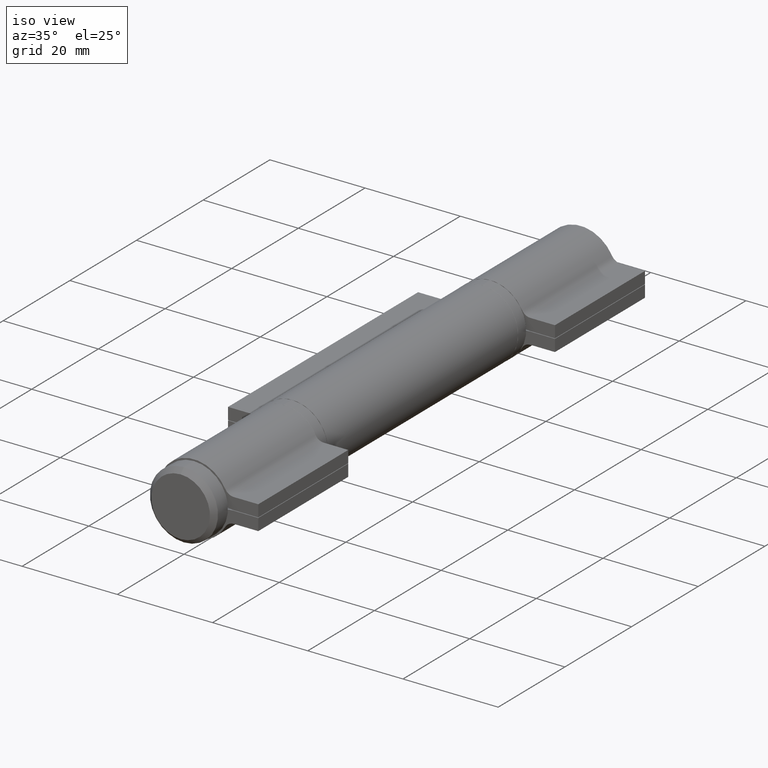
[diagram: clean part render]
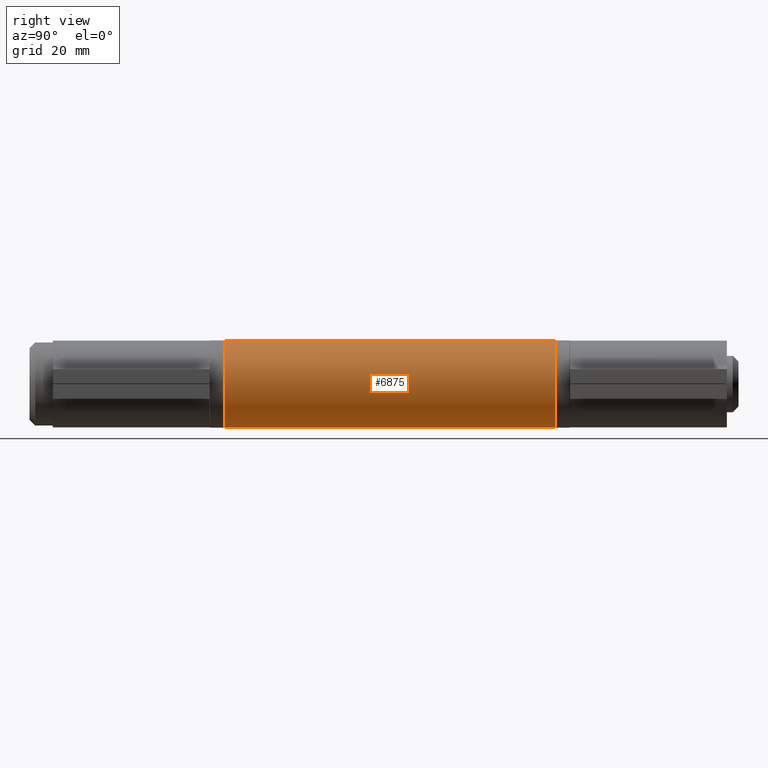
[diagram: tour spotlight — one face highlighted and labeled with its STEP entity id]
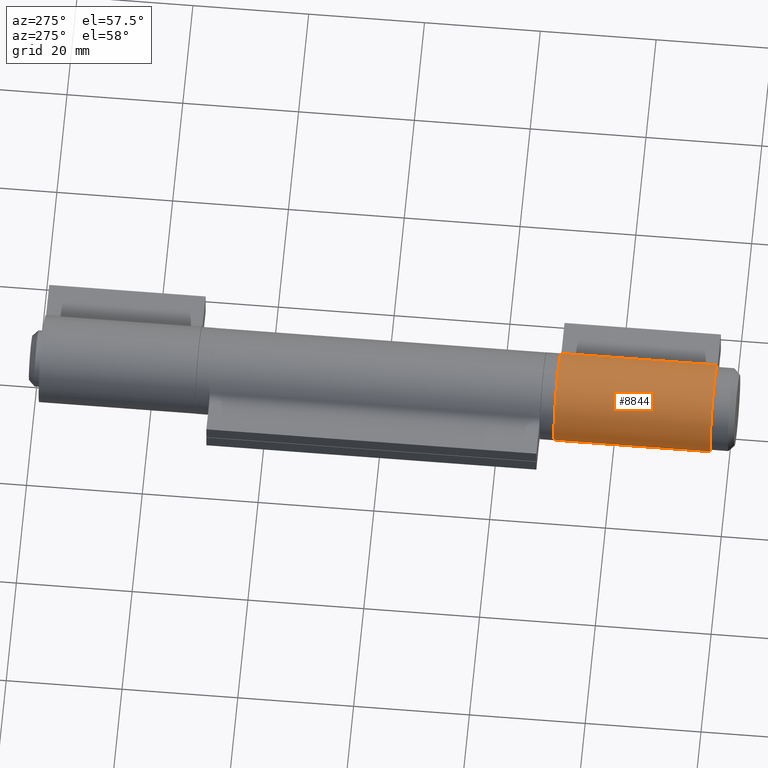
[diagram: tour spotlight — one face highlighted and labeled with its STEP entity id]
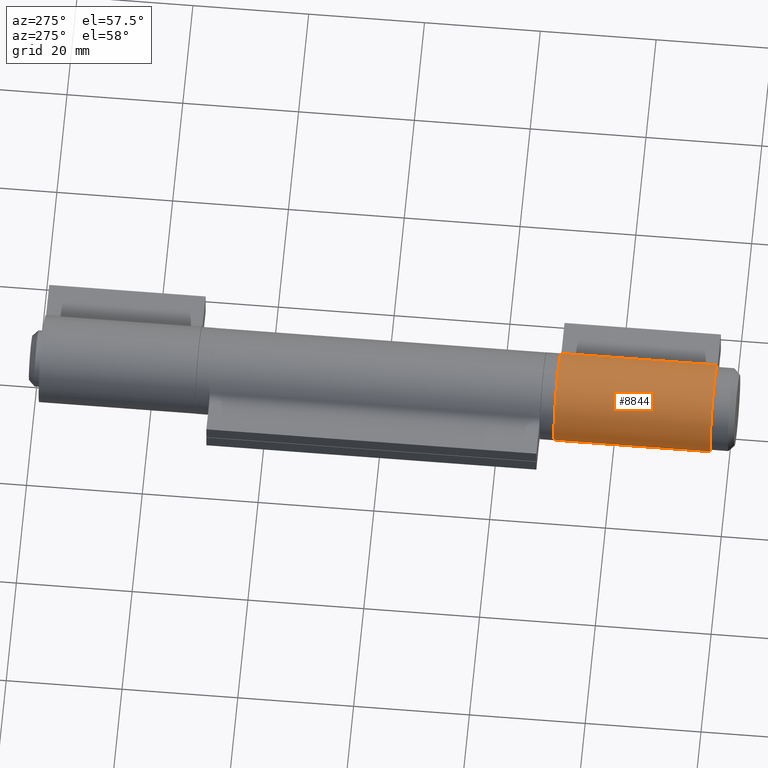
[diagram: tour spotlight — one face highlighted and labeled with its STEP entity id]
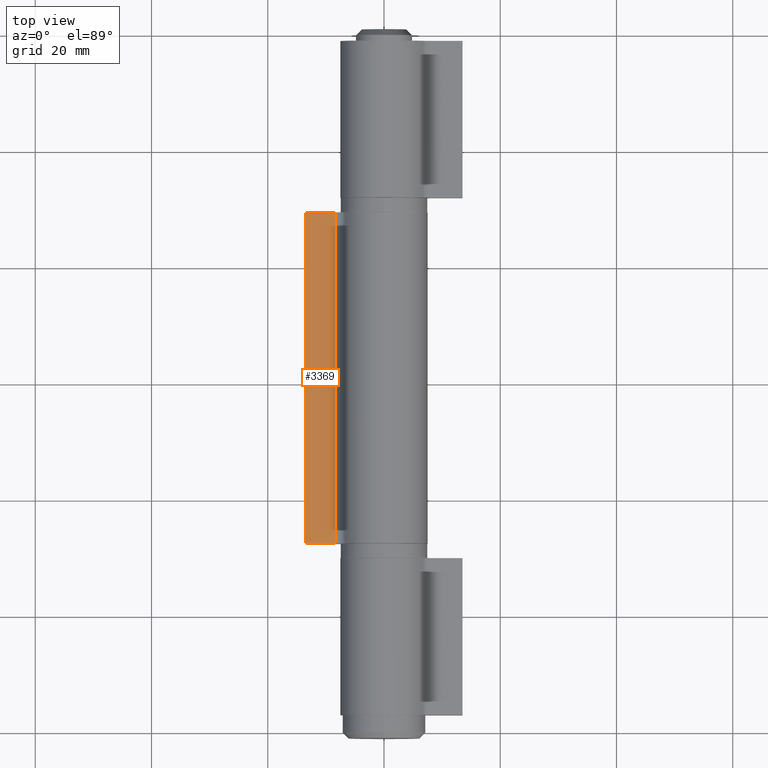
[diagram: tour spotlight — one face highlighted and labeled with its STEP entity id]
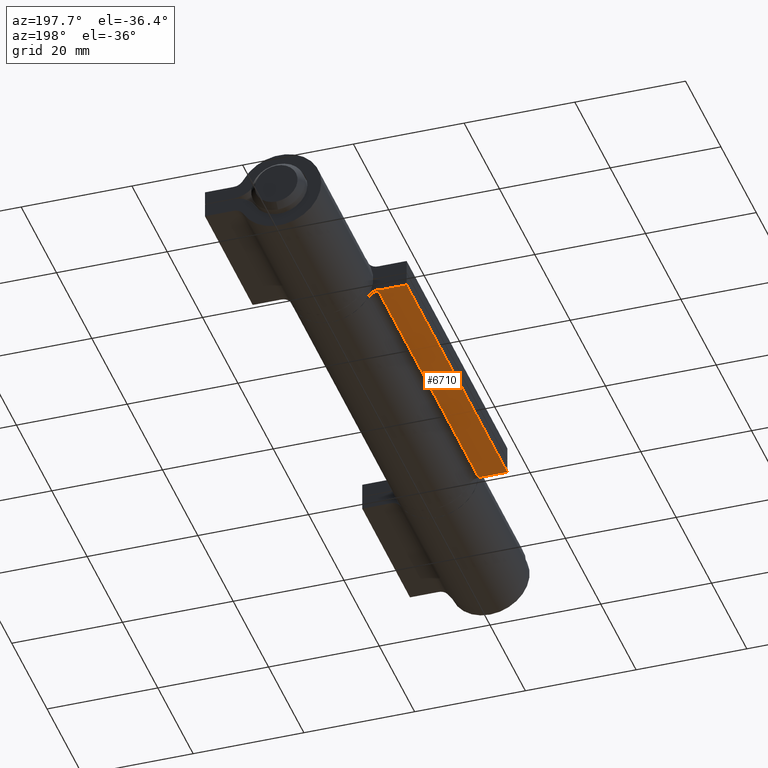
[diagram: tour spotlight — one face highlighted and labeled with its STEP entity id]
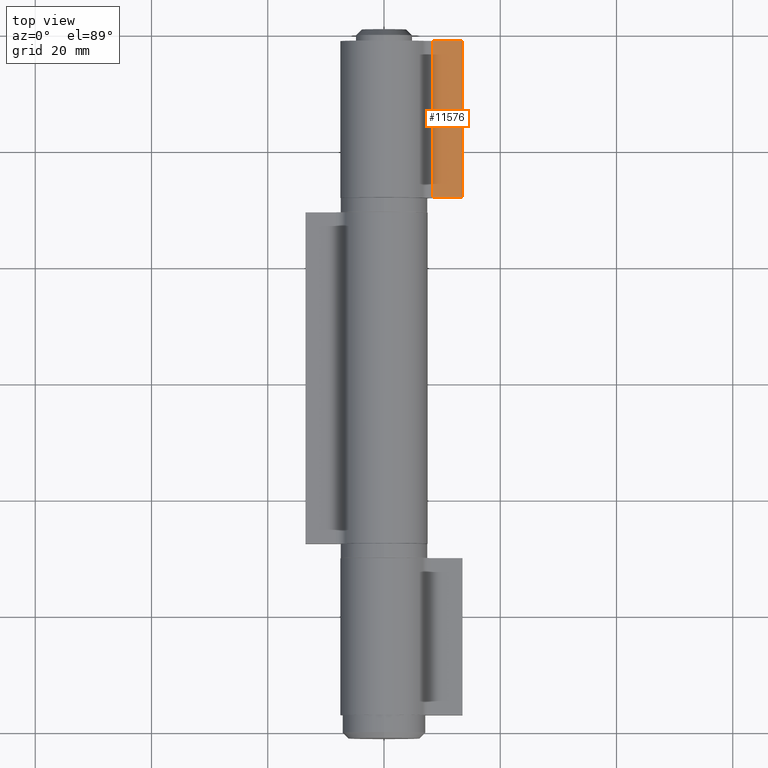
[diagram: tour spotlight — one face highlighted and labeled with its STEP entity id]
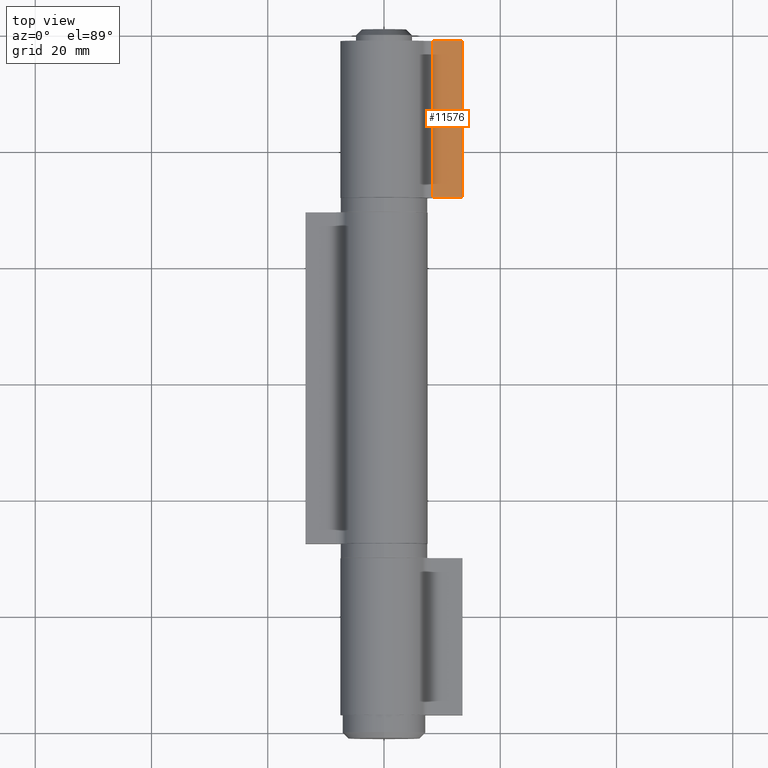
[diagram: tour spotlight — one face highlighted and labeled with its STEP entity id]
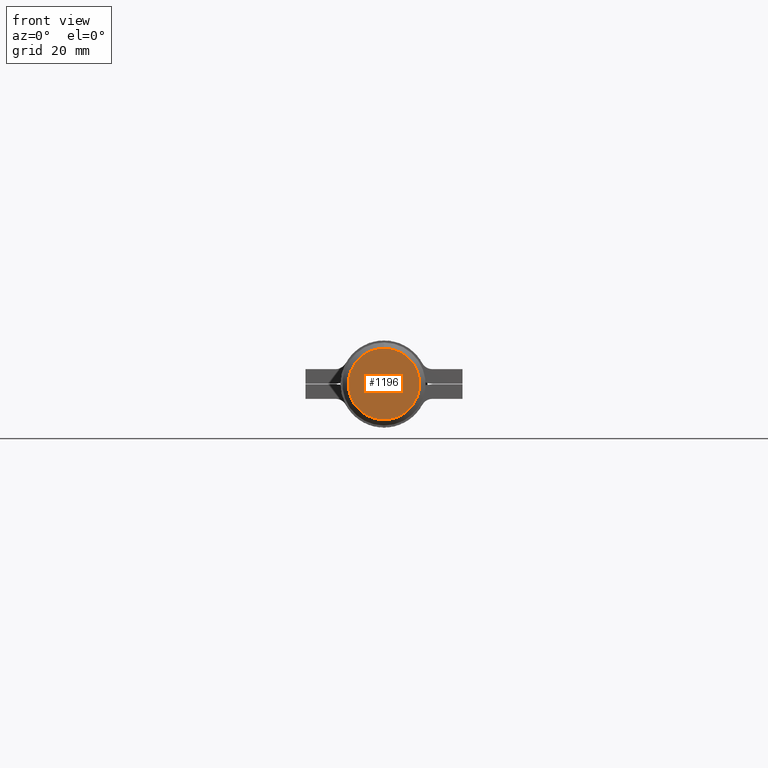
[diagram: tour spotlight — one face highlighted and labeled with its STEP entity id]
A machine part: a face-by-face anatomy tour. The part has 279 B-rep faces; the first image is the clean iso view, then the 8 largest visible faces are spotlighted one at a time (largest first), each with its STEP entity span.

Face 1 — right view, entity #6875. In plain terms, the highlighted cylindrical surface (partial cylindrical patch) has radius 7.5 mm, axis along (-0, -1, 0).
Definition (entity closure, byte-faithful):
#1681 = EDGE_CURVE ( 'NONE', #3194, #7250, #6335, .T. ) ;
#1700 = AXIS2_PLACEMENT_3D ( 'NONE', #7594, #7371, #11144 ) ;
#1954 = VECTOR ( 'NONE', #5976, 1000.000000000000000 ) ;
#2030 = CYLINDRICAL_SURFACE ( 'NONE', #5936, 7.500000000000000000 ) ;
#2193 = DIRECTION ( 'NONE',  ( 0.000000000000000000, 0.000000000000000000, 1.000000000000000000 ) ) ;
#2274 = CARTESIAN_POINT ( 'NONE',  ( -3.592105263157892470, -28.50000000000000000, -6.583827137645197780 ) ) ;
#3194 = VERTEX_POINT ( 'NONE', #6754 ) ;
#3233 = CIRCLE ( 'NONE', #11488, 7.500000000000000000 ) ;
#4387 = CARTESIAN_POINT ( 'NONE',  ( 0.000000000000000000, 28.50000000000000000, 0.000000000000000000 ) ) ;
#4519 = ORIENTED_EDGE ( 'NONE', *, *, #10116, .T. ) ;
#5155 = EDGE_LOOP ( 'NONE', ( #4519, #11934, #7478, #9316 ) ) ;
#5309 = FACE_OUTER_BOUND ( 'NONE', #5155, .T. ) ;
#5327 = CARTESIAN_POINT ( 'NONE',  ( -3.592105263157892470, 28.50000000000000000, -6.583827137645197780 ) ) ;
#5559 = CARTESIAN_POINT ( 'NONE',  ( 3.592105263157893802, -28.50000000000000000, -6.583827137645198668 ) ) ;
#5936 = AXIS2_PLACEMENT_3D ( 'NONE', #4387, #6366, #9057 ) ;
#5976 = DIRECTION ( 'NONE',  ( -0.000000000000000000, -1.000000000000000000, -0.000000000000000000 ) ) ;
#6030 = EDGE_CURVE ( 'NONE', #3194, #7127, #7664, .T. ) ;
#6335 = LINE ( 'NONE', #5327, #9096 ) ;
#6366 = DIRECTION ( 'NONE',  ( -0.000000000000000000, -1.000000000000000000, -0.000000000000000000 ) ) ;
#6754 = CARTESIAN_POINT ( 'NONE',  ( -3.592105263157892470, 28.50000000000000000, -6.583827137645197780 ) ) ;
#6875 = ADVANCED_FACE ( 'NONE', ( #5309 ), #2030, .T. ) ;
#7066 = VERTEX_POINT ( 'NONE', #5559 ) ;
#7127 = VERTEX_POINT ( 'NONE', #11267 ) ;
#7250 = VERTEX_POINT ( 'NONE', #2274 ) ;
#7371 = DIRECTION ( 'NONE',  ( 0.000000000000000000, 1.000000000000000000, 0.000000000000000000 ) ) ;
#7478 = ORIENTED_EDGE ( 'NONE', *, *, #6030, .F. ) ;
#7594 = CARTESIAN_POINT ( 'NONE',  ( 0.000000000000000000, 28.50000000000000000, 0.000000000000000000 ) ) ;
#7664 = CIRCLE ( 'NONE', #1700, 7.500000000000000000 ) ;
#7709 = CARTESIAN_POINT ( 'NONE',  ( 0.000000000000000000, -28.50000000000000000, 0.000000000000000000 ) ) ;
#8089 = DIRECTION ( 'NONE',  ( -0.000000000000000000, -1.000000000000000000, -0.000000000000000000 ) ) ;
#8166 = EDGE_CURVE ( 'NONE', #7127, #7066, #10203, .T. ) ;
#8900 = CARTESIAN_POINT ( 'NONE',  ( 3.592105263157893802, 28.50000000000000000, -6.583827137645198668 ) ) ;
#9057 = DIRECTION ( 'NONE',  ( 0.000000000000000000, 0.000000000000000000, -1.000000000000000000 ) ) ;
#9096 = VECTOR ( 'NONE', #8089, 1000.000000000000000 ) ;
#9316 = ORIENTED_EDGE ( 'NONE', *, *, #1681, .T. ) ;
#9665 = DIRECTION ( 'NONE',  ( 0.000000000000000000, 1.000000000000000000, 0.000000000000000000 ) ) ;
#10116 = EDGE_CURVE ( 'NONE', #7250, #7066, #3233, .T. ) ;
#10203 = LINE ( 'NONE', #8900, #1954 ) ;
#11144 = DIRECTION ( 'NONE',  ( 0.000000000000000000, 0.000000000000000000, 1.000000000000000000 ) ) ;
#11267 = CARTESIAN_POINT ( 'NONE',  ( 3.592105263157893802, 28.50000000000000000, -6.583827137645198668 ) ) ;
#11488 = AXIS2_PLACEMENT_3D ( 'NONE', #7709, #9665, #2193 ) ;
#11934 = ORIENTED_EDGE ( 'NONE', *, *, #8166, .F. ) ;

Face 2 — auxiliary view, entity #8844. In plain terms, the highlighted cylindrical surface (partial cylindrical patch) has radius 7.5 mm, axis along (0, -1, -0).
Definition (entity closure, byte-faithful):
#226 = CARTESIAN_POINT ( 'NONE',  ( 0.000000000000000000, 13.50000000000000000, 0.000000000000000000 ) ) ;
#368 = VERTEX_POINT ( 'NONE', #6585 ) ;
#491 = DIRECTION ( 'NONE',  ( 0.000000000000000000, 0.000000000000000000, 1.000000000000000000 ) ) ;
#596 = DIRECTION ( 'NONE',  ( 0.000000000000000000, 1.000000000000000000, 0.000000000000000000 ) ) ;
#729 = LINE ( 'NONE', #3076, #2741 ) ;
#1104 = DIRECTION ( 'NONE',  ( 0.000000000000000000, 0.000000000000000000, -1.000000000000000000 ) ) ;
#1570 = LINE ( 'NONE', #6633, #8654 ) ;
#2002 = DIRECTION ( 'NONE',  ( 0.000000000000000000, 1.000000000000000000, 0.000000000000000000 ) ) ;
#2032 = DIRECTION ( 'NONE',  ( -0.000000000000000000, -1.000000000000000000, -0.000000000000000000 ) ) ;
#2741 = VECTOR ( 'NONE', #9602, 1000.000000000000000 ) ;
#3015 = AXIS2_PLACEMENT_3D ( 'NONE', #8444, #2002, #10474 ) ;
#3076 = CARTESIAN_POINT ( 'NONE',  ( 3.592105263157894246, 13.50000000000000000, -6.583827137645197780 ) ) ;
#3104 = AXIS2_PLACEMENT_3D ( 'NONE', #226, #2032, #1104 ) ;
#3251 = CARTESIAN_POINT ( 'NONE',  ( 0.000000000000000000, 13.50000000000000000, 0.000000000000000000 ) ) ;
#3675 = FACE_OUTER_BOUND ( 'NONE', #3837, .T. ) ;
#3679 = CARTESIAN_POINT ( 'NONE',  ( -3.592105263157892470, -13.50000000000000000, -6.583827137645197780 ) ) ;
#3837 = EDGE_LOOP ( 'NONE', ( #4592, #5625, #5220, #7039 ) ) ;
#4592 = ORIENTED_EDGE ( 'NONE', *, *, #6258, .T. ) ;
#4658 = CIRCLE ( 'NONE', #9556, 7.500000000000000000 ) ;
#5089 = VERTEX_POINT ( 'NONE', #3679 ) ;
#5220 = ORIENTED_EDGE ( 'NONE', *, *, #11940, .F. ) ;
#5625 = ORIENTED_EDGE ( 'NONE', *, *, #8483, .F. ) ;
#6258 = EDGE_CURVE ( 'NONE', #5089, #10016, #10575, .T. ) ;
#6585 = CARTESIAN_POINT ( 'NONE',  ( -3.592105263157892470, 13.50000000000000000, -6.583827137645197780 ) ) ;
#6633 = CARTESIAN_POINT ( 'NONE',  ( -3.592105263157892470, 13.50000000000000000, -6.583827137645197780 ) ) ;
#6696 = CARTESIAN_POINT ( 'NONE',  ( 3.592105263157894246, -13.50000000000000000, -6.583827137645197780 ) ) ;
#6816 = VERTEX_POINT ( 'NONE', #9182 ) ;
#7039 = ORIENTED_EDGE ( 'NONE', *, *, #7498, .T. ) ;
#7283 = DIRECTION ( 'NONE',  ( -0.000000000000000000, -1.000000000000000000, -0.000000000000000000 ) ) ;
#7498 = EDGE_CURVE ( 'NONE', #368, #5089, #1570, .T. ) ;
#8311 = CYLINDRICAL_SURFACE ( 'NONE', #3104, 7.500000000000000000 ) ;
#8444 = CARTESIAN_POINT ( 'NONE',  ( 0.000000000000000000, -13.50000000000000000, 0.000000000000000000 ) ) ;
#8483 = EDGE_CURVE ( 'NONE', #6816, #10016, #729, .T. ) ;
#8654 = VECTOR ( 'NONE', #7283, 1000.000000000000000 ) ;
#8844 = ADVANCED_FACE ( 'NONE', ( #3675 ), #8311, .T. ) ;
#9182 = CARTESIAN_POINT ( 'NONE',  ( 3.592105263157894246, 13.50000000000000000, -6.583827137645197780 ) ) ;
#9556 = AXIS2_PLACEMENT_3D ( 'NONE', #3251, #596, #491 ) ;
#9602 = DIRECTION ( 'NONE',  ( -0.000000000000000000, -1.000000000000000000, -0.000000000000000000 ) ) ;
#10016 = VERTEX_POINT ( 'NONE', #6696 ) ;
#10474 = DIRECTION ( 'NONE',  ( 0.000000000000000000, 0.000000000000000000, 1.000000000000000000 ) ) ;
#10575 = CIRCLE ( 'NONE', #3015, 7.500000000000000000 ) ;
#11940 = EDGE_CURVE ( 'NONE', #368, #6816, #4658, .T. ) ;

Face 3 — auxiliary view, entity #8844. In plain terms, the highlighted cylindrical surface (partial cylindrical patch) has radius 7.5 mm, axis along (0, -1, -0).
Definition (entity closure, byte-faithful):
#226 = CARTESIAN_POINT ( 'NONE',  ( 0.000000000000000000, 13.50000000000000000, 0.000000000000000000 ) ) ;
#368 = VERTEX_POINT ( 'NONE', #6585 ) ;
#491 = DIRECTION ( 'NONE',  ( 0.000000000000000000, 0.000000000000000000, 1.000000000000000000 ) ) ;
#596 = DIRECTION ( 'NONE',  ( 0.000000000000000000, 1.000000000000000000, 0.000000000000000000 ) ) ;
#729 = LINE ( 'NONE', #3076, #2741 ) ;
#1104 = DIRECTION ( 'NONE',  ( 0.000000000000000000, 0.000000000000000000, -1.000000000000000000 ) ) ;
#1570 = LINE ( 'NONE', #6633, #8654 ) ;
#2002 = DIRECTION ( 'NONE',  ( 0.000000000000000000, 1.000000000000000000, 0.000000000000000000 ) ) ;
#2032 = DIRECTION ( 'NONE',  ( -0.000000000000000000, -1.000000000000000000, -0.000000000000000000 ) ) ;
#2741 = VECTOR ( 'NONE', #9602, 1000.000000000000000 ) ;
#3015 = AXIS2_PLACEMENT_3D ( 'NONE', #8444, #2002, #10474 ) ;
#3076 = CARTESIAN_POINT ( 'NONE',  ( 3.592105263157894246, 13.50000000000000000, -6.583827137645197780 ) ) ;
#3104 = AXIS2_PLACEMENT_3D ( 'NONE', #226, #2032, #1104 ) ;
#3251 = CARTESIAN_POINT ( 'NONE',  ( 0.000000000000000000, 13.50000000000000000, 0.000000000000000000 ) ) ;
#3675 = FACE_OUTER_BOUND ( 'NONE', #3837, .T. ) ;
#3679 = CARTESIAN_POINT ( 'NONE',  ( -3.592105263157892470, -13.50000000000000000, -6.583827137645197780 ) ) ;
#3837 = EDGE_LOOP ( 'NONE', ( #4592, #5625, #5220, #7039 ) ) ;
#4592 = ORIENTED_EDGE ( 'NONE', *, *, #6258, .T. ) ;
#4658 = CIRCLE ( 'NONE', #9556, 7.500000000000000000 ) ;
#5089 = VERTEX_POINT ( 'NONE', #3679 ) ;
#5220 = ORIENTED_EDGE ( 'NONE', *, *, #11940, .F. ) ;
#5625 = ORIENTED_EDGE ( 'NONE', *, *, #8483, .F. ) ;
#6258 = EDGE_CURVE ( 'NONE', #5089, #10016, #10575, .T. ) ;
#6585 = CARTESIAN_POINT ( 'NONE',  ( -3.592105263157892470, 13.50000000000000000, -6.583827137645197780 ) ) ;
#6633 = CARTESIAN_POINT ( 'NONE',  ( -3.592105263157892470, 13.50000000000000000, -6.583827137645197780 ) ) ;
#6696 = CARTESIAN_POINT ( 'NONE',  ( 3.592105263157894246, -13.50000000000000000, -6.583827137645197780 ) ) ;
#6816 = VERTEX_POINT ( 'NONE', #9182 ) ;
#7039 = ORIENTED_EDGE ( 'NONE', *, *, #7498, .T. ) ;
#7283 = DIRECTION ( 'NONE',  ( -0.000000000000000000, -1.000000000000000000, -0.000000000000000000 ) ) ;
#7498 = EDGE_CURVE ( 'NONE', #368, #5089, #1570, .T. ) ;
#8311 = CYLINDRICAL_SURFACE ( 'NONE', #3104, 7.500000000000000000 ) ;
#8444 = CARTESIAN_POINT ( 'NONE',  ( 0.000000000000000000, -13.50000000000000000, 0.000000000000000000 ) ) ;
#8483 = EDGE_CURVE ( 'NONE', #6816, #10016, #729, .T. ) ;
#8654 = VECTOR ( 'NONE', #7283, 1000.000000000000000 ) ;
#8844 = ADVANCED_FACE ( 'NONE', ( #3675 ), #8311, .T. ) ;
#9182 = CARTESIAN_POINT ( 'NONE',  ( 3.592105263157894246, 13.50000000000000000, -6.583827137645197780 ) ) ;
#9556 = AXIS2_PLACEMENT_3D ( 'NONE', #3251, #596, #491 ) ;
#9602 = DIRECTION ( 'NONE',  ( -0.000000000000000000, -1.000000000000000000, -0.000000000000000000 ) ) ;
#10016 = VERTEX_POINT ( 'NONE', #6696 ) ;
#10474 = DIRECTION ( 'NONE',  ( 0.000000000000000000, 0.000000000000000000, 1.000000000000000000 ) ) ;
#10575 = CIRCLE ( 'NONE', #3015, 7.500000000000000000 ) ;
#11940 = EDGE_CURVE ( 'NONE', #368, #6816, #4658, .T. ) ;

Face 4 — top view, entity #3369. In plain terms, the highlighted planar face has unit normal (0, 0, -1).
Definition (entity closure, byte-faithful):
#69 = FACE_OUTER_BOUND ( 'NONE', #6355, .T. ) ;
#193 = CARTESIAN_POINT ( 'NONE',  ( -2.549999999999999822, -28.50000000000000000, -13.50000000000000178 ) ) ;
#606 = VECTOR ( 'NONE', #6049, 1000.000000000000000 ) ;
#769 = VERTEX_POINT ( 'NONE', #1861 ) ;
#1151 = AXIS2_PLACEMENT_3D ( 'NONE', #5247, #10976, #1683 ) ;
#1174 = VECTOR ( 'NONE', #5453, 1000.000000000000000 ) ;
#1683 = DIRECTION ( 'NONE',  ( 0.000000000000000000, 0.000000000000000000, -1.000000000000000000 ) ) ;
#1692 = CARTESIAN_POINT ( 'NONE',  ( -2.549999999999999822, 28.50000000000000000, -13.50000000000000178 ) ) ;
#1861 = CARTESIAN_POINT ( 'NONE',  ( -2.549999999999999822, 28.50000000000000000, -13.50000000000000178 ) ) ;
#3369 = ADVANCED_FACE ( 'NONE', ( #69 ), #9844, .F. ) ;
#3638 = CARTESIAN_POINT ( 'NONE',  ( -2.549999999999998490, 28.50000000000000000, -8.339514374350583736 ) ) ;
#3787 = DIRECTION ( 'NONE',  ( -0.000000000000000000, -1.000000000000000000, -0.000000000000000000 ) ) ;
#4488 = VECTOR ( 'NONE', #3787, 1000.000000000000000 ) ;
#4506 = ORIENTED_EDGE ( 'NONE', *, *, #5752, .F. ) ;
#4570 = CARTESIAN_POINT ( 'NONE',  ( -2.549999999999998490, 28.50000000000000000, -8.339514374350583736 ) ) ;
#4759 = EDGE_CURVE ( 'NONE', #10347, #10619, #6953, .T. ) ;
#4780 = EDGE_CURVE ( 'NONE', #11138, #10619, #4908, .T. ) ;
#4908 = LINE ( 'NONE', #8305, #5638 ) ;
#5247 = CARTESIAN_POINT ( 'NONE',  ( -2.549999999999999822, 28.50000000000000000, -13.50000000000000178 ) ) ;
#5453 = DIRECTION ( 'NONE',  ( 0.000000000000000000, 0.000000000000000000, 1.000000000000000000 ) ) ;
#5638 = VECTOR ( 'NONE', #10105, 1000.000000000000000 ) ;
#5642 = ORIENTED_EDGE ( 'NONE', *, *, #4780, .T. ) ;
#5752 = EDGE_CURVE ( 'NONE', #769, #10347, #7360, .T. ) ;
#5934 = EDGE_CURVE ( 'NONE', #769, #11138, #9713, .T. ) ;
#6049 = DIRECTION ( 'NONE',  ( -0.000000000000000000, -1.000000000000000000, -0.000000000000000000 ) ) ;
#6208 = ORIENTED_EDGE ( 'NONE', *, *, #5934, .T. ) ;
#6355 = EDGE_LOOP ( 'NONE', ( #5642, #8407, #4506, #6208 ) ) ;
#6953 = LINE ( 'NONE', #4570, #4488 ) ;
#7360 = LINE ( 'NONE', #1692, #1174 ) ;
#7908 = CARTESIAN_POINT ( 'NONE',  ( -2.549999999999998490, -28.50000000000000000, -8.339514374350583736 ) ) ;
#8305 = CARTESIAN_POINT ( 'NONE',  ( -2.549999999999999822, -28.50000000000000000, -13.50000000000000178 ) ) ;
#8407 = ORIENTED_EDGE ( 'NONE', *, *, #4759, .F. ) ;
#9713 = LINE ( 'NONE', #11490, #606 ) ;
#9844 = PLANE ( 'NONE',  #1151 ) ;
#10105 = DIRECTION ( 'NONE',  ( 0.000000000000000000, 0.000000000000000000, 1.000000000000000000 ) ) ;
#10347 = VERTEX_POINT ( 'NONE', #3638 ) ;
#10619 = VERTEX_POINT ( 'NONE', #7908 ) ;
#10976 = DIRECTION ( 'NONE',  ( 1.000000000000000000, 0.000000000000000000, 0.000000000000000000 ) ) ;
#11138 = VERTEX_POINT ( 'NONE', #193 ) ;
#11490 = CARTESIAN_POINT ( 'NONE',  ( -2.549999999999999822, 28.50000000000000000, -13.50000000000000178 ) ) ;

Face 5 — auxiliary view, entity #6710. In plain terms, the highlighted planar face has unit normal (0, 0, 1).
Definition (entity closure, byte-faithful):
#169 = VERTEX_POINT ( 'NONE', #7864 ) ;
#263 = EDGE_CURVE ( 'NONE', #4414, #169, #7060, .T. ) ;
#423 = CARTESIAN_POINT ( 'NONE',  ( 2.549999999999999822, 28.50000000000000000, -13.50000000000000178 ) ) ;
#585 = ORIENTED_EDGE ( 'NONE', *, *, #9024, .F. ) ;
#653 = CARTESIAN_POINT ( 'NONE',  ( 2.549999999999999822, 28.50000000000000000, -8.339514374350583736 ) ) ;
#701 = CARTESIAN_POINT ( 'NONE',  ( 2.549999999999999822, 28.50000000000000000, -13.50000000000000178 ) ) ;
#908 = EDGE_LOOP ( 'NONE', ( #11969, #7364, #585, #11461 ) ) ;
#1441 = DIRECTION ( 'NONE',  ( -0.000000000000000000, -1.000000000000000000, -0.000000000000000000 ) ) ;
#1542 = PLANE ( 'NONE',  #11777 ) ;
#2309 = DIRECTION ( 'NONE',  ( -0.000000000000000000, -0.000000000000000000, -1.000000000000000000 ) ) ;
#2337 = CARTESIAN_POINT ( 'NONE',  ( 2.549999999999999822, 28.50000000000000000, -13.50000000000000178 ) ) ;
#3234 = VECTOR ( 'NONE', #1441, 1000.000000000000000 ) ;
#3292 = EDGE_CURVE ( 'NONE', #3381, #10747, #6973, .T. ) ;
#3381 = VERTEX_POINT ( 'NONE', #2337 ) ;
#3556 = EDGE_CURVE ( 'NONE', #169, #10747, #4217, .T. ) ;
#4217 = LINE ( 'NONE', #11133, #6669 ) ;
#4257 = CARTESIAN_POINT ( 'NONE',  ( 2.549999999999999822, 28.50000000000000000, -13.50000000000000178 ) ) ;
#4414 = VERTEX_POINT ( 'NONE', #7698 ) ;
#5548 = CARTESIAN_POINT ( 'NONE',  ( 2.549999999999999822, -28.50000000000000000, -13.50000000000000178 ) ) ;
#5755 = FACE_OUTER_BOUND ( 'NONE', #908, .T. ) ;
#5767 = VECTOR ( 'NONE', #7111, 1000.000000000000000 ) ;
#6669 = VECTOR ( 'NONE', #8368, 1000.000000000000000 ) ;
#6710 = ADVANCED_FACE ( 'NONE', ( #5755 ), #1542, .F. ) ;
#6973 = LINE ( 'NONE', #4257, #3234 ) ;
#7060 = LINE ( 'NONE', #653, #5767 ) ;
#7111 = DIRECTION ( 'NONE',  ( -0.000000000000000000, -1.000000000000000000, -0.000000000000000000 ) ) ;
#7364 = ORIENTED_EDGE ( 'NONE', *, *, #3292, .F. ) ;
#7698 = CARTESIAN_POINT ( 'NONE',  ( 2.549999999999999822, 28.50000000000000000, -8.339514374350583736 ) ) ;
#7864 = CARTESIAN_POINT ( 'NONE',  ( 2.549999999999999822, -28.50000000000000000, -8.339514374350583736 ) ) ;
#7914 = DIRECTION ( 'NONE',  ( -1.000000000000000000, 0.000000000000000000, 0.000000000000000000 ) ) ;
#8368 = DIRECTION ( 'NONE',  ( -0.000000000000000000, -0.000000000000000000, -1.000000000000000000 ) ) ;
#9024 = EDGE_CURVE ( 'NONE', #4414, #3381, #10079, .T. ) ;
#10079 = LINE ( 'NONE', #423, #11222 ) ;
#10747 = VERTEX_POINT ( 'NONE', #5548 ) ;
#11133 = CARTESIAN_POINT ( 'NONE',  ( 2.549999999999999822, -28.50000000000000000, -13.50000000000000178 ) ) ;
#11222 = VECTOR ( 'NONE', #2309, 1000.000000000000000 ) ;
#11461 = ORIENTED_EDGE ( 'NONE', *, *, #263, .T. ) ;
#11774 = DIRECTION ( 'NONE',  ( 0.000000000000000000, 0.000000000000000000, 1.000000000000000000 ) ) ;
#11777 = AXIS2_PLACEMENT_3D ( 'NONE', #701, #7914, #11774 ) ;
#11969 = ORIENTED_EDGE ( 'NONE', *, *, #3556, .T. ) ;

Face 6 — top view, entity #11576. In plain terms, the highlighted planar face has unit normal (0, 0, -1).
Definition (entity closure, byte-faithful):
#123 = VERTEX_POINT ( 'NONE', #6884 ) ;
#1152 = VECTOR ( 'NONE', #5419, 1000.000000000000000 ) ;
#1246 = ORIENTED_EDGE ( 'NONE', *, *, #1710, .F. ) ;
#1710 = EDGE_CURVE ( 'NONE', #123, #6059, #11859, .T. ) ;
#1726 = AXIS2_PLACEMENT_3D ( 'NONE', #10906, #5329, #7282 ) ;
#2079 = EDGE_LOOP ( 'NONE', ( #4648, #9272, #1246, #2478 ) ) ;
#2165 = VERTEX_POINT ( 'NONE', #5238 ) ;
#2438 = EDGE_CURVE ( 'NONE', #123, #4929, #11555, .T. ) ;
#2478 = ORIENTED_EDGE ( 'NONE', *, *, #2438, .T. ) ;
#2967 = DIRECTION ( 'NONE',  ( 8.403877085494751107E-17, -0.000000000000000000, -1.000000000000000000 ) ) ;
#3050 = LINE ( 'NONE', #5723, #4628 ) ;
#4298 = VECTOR ( 'NONE', #7761, 1000.000000000000000 ) ;
#4409 = DIRECTION ( 'NONE',  ( -0.000000000000000000, -1.000000000000000000, -0.000000000000000000 ) ) ;
#4412 = PLANE ( 'NONE',  #1726 ) ;
#4628 = VECTOR ( 'NONE', #2967, 1000.000000000000000 ) ;
#4648 = ORIENTED_EDGE ( 'NONE', *, *, #5167, .T. ) ;
#4929 = VERTEX_POINT ( 'NONE', #10737 ) ;
#5167 = EDGE_CURVE ( 'NONE', #4929, #2165, #3050, .T. ) ;
#5238 = CARTESIAN_POINT ( 'NONE',  ( 2.549999999999999822, -13.50000000000000000, -13.50000000000000178 ) ) ;
#5249 = CARTESIAN_POINT ( 'NONE',  ( 2.549999999999999822, 13.50000000000000000, -13.50000000000000178 ) ) ;
#5329 = DIRECTION ( 'NONE',  ( -1.000000000000000000, 0.000000000000000000, -8.403877085494752340E-17 ) ) ;
#5378 = LINE ( 'NONE', #5249, #8438 ) ;
#5419 = DIRECTION ( 'NONE',  ( 8.403877085494751107E-17, -0.000000000000000000, -1.000000000000000000 ) ) ;
#5723 = CARTESIAN_POINT ( 'NONE',  ( 2.549999999999999822, -13.50000000000000000, -13.50000000000000178 ) ) ;
#6059 = VERTEX_POINT ( 'NONE', #10042 ) ;
#6884 = CARTESIAN_POINT ( 'NONE',  ( 2.549999999999999378, 13.50000000000000000, -8.339514374350583736 ) ) ;
#7282 = DIRECTION ( 'NONE',  ( -8.403877085494752340E-17, 0.000000000000000000, 1.000000000000000000 ) ) ;
#7761 = DIRECTION ( 'NONE',  ( -0.000000000000000000, -1.000000000000000000, -0.000000000000000000 ) ) ;
#7847 = CARTESIAN_POINT ( 'NONE',  ( 2.549999999999999378, 13.50000000000000000, -8.339514374350583736 ) ) ;
#8438 = VECTOR ( 'NONE', #4409, 1000.000000000000000 ) ;
#9272 = ORIENTED_EDGE ( 'NONE', *, *, #10225, .F. ) ;
#10042 = CARTESIAN_POINT ( 'NONE',  ( 2.549999999999999822, 13.50000000000000000, -13.50000000000000178 ) ) ;
#10225 = EDGE_CURVE ( 'NONE', #6059, #2165, #5378, .T. ) ;
#10484 = FACE_OUTER_BOUND ( 'NONE', #2079, .T. ) ;
#10737 = CARTESIAN_POINT ( 'NONE',  ( 2.549999999999999378, -13.50000000000000000, -8.339514374350583736 ) ) ;
#10906 = CARTESIAN_POINT ( 'NONE',  ( 2.549999999999999822, 13.50000000000000000, -13.50000000000000178 ) ) ;
#11555 = LINE ( 'NONE', #7847, #4298 ) ;
#11576 = ADVANCED_FACE ( 'NONE', ( #10484 ), #4412, .F. ) ;
#11859 = LINE ( 'NONE', #11874, #1152 ) ;
#11874 = CARTESIAN_POINT ( 'NONE',  ( 2.549999999999999822, 13.50000000000000000, -13.50000000000000178 ) ) ;

Face 7 — top view, entity #11576. In plain terms, the highlighted planar face has unit normal (0, 0, -1).
Definition (entity closure, byte-faithful):
#123 = VERTEX_POINT ( 'NONE', #6884 ) ;
#1152 = VECTOR ( 'NONE', #5419, 1000.000000000000000 ) ;
#1246 = ORIENTED_EDGE ( 'NONE', *, *, #1710, .F. ) ;
#1710 = EDGE_CURVE ( 'NONE', #123, #6059, #11859, .T. ) ;
#1726 = AXIS2_PLACEMENT_3D ( 'NONE', #10906, #5329, #7282 ) ;
#2079 = EDGE_LOOP ( 'NONE', ( #4648, #9272, #1246, #2478 ) ) ;
#2165 = VERTEX_POINT ( 'NONE', #5238 ) ;
#2438 = EDGE_CURVE ( 'NONE', #123, #4929, #11555, .T. ) ;
#2478 = ORIENTED_EDGE ( 'NONE', *, *, #2438, .T. ) ;
#2967 = DIRECTION ( 'NONE',  ( 8.403877085494751107E-17, -0.000000000000000000, -1.000000000000000000 ) ) ;
#3050 = LINE ( 'NONE', #5723, #4628 ) ;
#4298 = VECTOR ( 'NONE', #7761, 1000.000000000000000 ) ;
#4409 = DIRECTION ( 'NONE',  ( -0.000000000000000000, -1.000000000000000000, -0.000000000000000000 ) ) ;
#4412 = PLANE ( 'NONE',  #1726 ) ;
#4628 = VECTOR ( 'NONE', #2967, 1000.000000000000000 ) ;
#4648 = ORIENTED_EDGE ( 'NONE', *, *, #5167, .T. ) ;
#4929 = VERTEX_POINT ( 'NONE', #10737 ) ;
#5167 = EDGE_CURVE ( 'NONE', #4929, #2165, #3050, .T. ) ;
#5238 = CARTESIAN_POINT ( 'NONE',  ( 2.549999999999999822, -13.50000000000000000, -13.50000000000000178 ) ) ;
#5249 = CARTESIAN_POINT ( 'NONE',  ( 2.549999999999999822, 13.50000000000000000, -13.50000000000000178 ) ) ;
#5329 = DIRECTION ( 'NONE',  ( -1.000000000000000000, 0.000000000000000000, -8.403877085494752340E-17 ) ) ;
#5378 = LINE ( 'NONE', #5249, #8438 ) ;
#5419 = DIRECTION ( 'NONE',  ( 8.403877085494751107E-17, -0.000000000000000000, -1.000000000000000000 ) ) ;
#5723 = CARTESIAN_POINT ( 'NONE',  ( 2.549999999999999822, -13.50000000000000000, -13.50000000000000178 ) ) ;
#6059 = VERTEX_POINT ( 'NONE', #10042 ) ;
#6884 = CARTESIAN_POINT ( 'NONE',  ( 2.549999999999999378, 13.50000000000000000, -8.339514374350583736 ) ) ;
#7282 = DIRECTION ( 'NONE',  ( -8.403877085494752340E-17, 0.000000000000000000, 1.000000000000000000 ) ) ;
#7761 = DIRECTION ( 'NONE',  ( -0.000000000000000000, -1.000000000000000000, -0.000000000000000000 ) ) ;
#7847 = CARTESIAN_POINT ( 'NONE',  ( 2.549999999999999378, 13.50000000000000000, -8.339514374350583736 ) ) ;
#8438 = VECTOR ( 'NONE', #4409, 1000.000000000000000 ) ;
#9272 = ORIENTED_EDGE ( 'NONE', *, *, #10225, .F. ) ;
#10042 = CARTESIAN_POINT ( 'NONE',  ( 2.549999999999999822, 13.50000000000000000, -13.50000000000000178 ) ) ;
#10225 = EDGE_CURVE ( 'NONE', #6059, #2165, #5378, .T. ) ;
#10484 = FACE_OUTER_BOUND ( 'NONE', #2079, .T. ) ;
#10737 = CARTESIAN_POINT ( 'NONE',  ( 2.549999999999999378, -13.50000000000000000, -8.339514374350583736 ) ) ;
#10906 = CARTESIAN_POINT ( 'NONE',  ( 2.549999999999999822, 13.50000000000000000, -13.50000000000000178 ) ) ;
#11555 = LINE ( 'NONE', #7847, #4298 ) ;
#11576 = ADVANCED_FACE ( 'NONE', ( #10484 ), #4412, .F. ) ;
#11859 = LINE ( 'NONE', #11874, #1152 ) ;
#11874 = CARTESIAN_POINT ( 'NONE',  ( 2.549999999999999822, 13.50000000000000000, -13.50000000000000178 ) ) ;

Face 8 — front view, entity #1196. In plain terms, the highlighted planar face has unit normal (0, 1, 0).
Definition (entity closure, byte-faithful):
#1196 = ADVANCED_FACE ( 'NONE', ( #4597 ), #2771, .F. ) ;
#2525 = CARTESIAN_POINT ( 'NONE',  ( 1.812477262738082717E-14, -61.00000000000000000, 6.149999999999974598 ) ) ;
#2771 = PLANE ( 'NONE',  #7005 ) ;
#3449 = EDGE_LOOP ( 'NONE', ( #7833 ) ) ;
#4597 = FACE_OUTER_BOUND ( 'NONE', #3449, .T. ) ;
#5537 = DIRECTION ( 'NONE',  ( 0.000000000000000000, 0.000000000000000000, 1.000000000000000000 ) ) ;
#6398 = VERTEX_POINT ( 'NONE', #2525 ) ;
#7005 = AXIS2_PLACEMENT_3D ( 'NONE', #11962, #10103, #5537 ) ;
#7069 = DIRECTION ( 'NONE',  ( 0.000000000000000000, -1.000000000000000000, 0.000000000000000000 ) ) ;
#7385 = EDGE_CURVE ( 'NONE', #6398, #6398, #10829, .T. ) ;
#7833 = ORIENTED_EDGE ( 'NONE', *, *, #7385, .T. ) ;
#8092 = CARTESIAN_POINT ( 'NONE',  ( 1.812477262738082717E-14, -61.00000000000000000, 0.000000000000000000 ) ) ;
#8999 = DIRECTION ( 'NONE',  ( 0.000000000000000000, 0.000000000000000000, 1.000000000000000000 ) ) ;
#10103 = DIRECTION ( 'NONE',  ( -0.000000000000000000, 1.000000000000000000, 0.000000000000000000 ) ) ;
#10463 = AXIS2_PLACEMENT_3D ( 'NONE', #8092, #7069, #8999 ) ;
#10829 = CIRCLE ( 'NONE', #10463, 6.149999999999974598 ) ;
#11962 = CARTESIAN_POINT ( 'NONE',  ( 1.812477262738082717E-14, -61.00000000000000000, 0.000000000000000000 ) ) ;